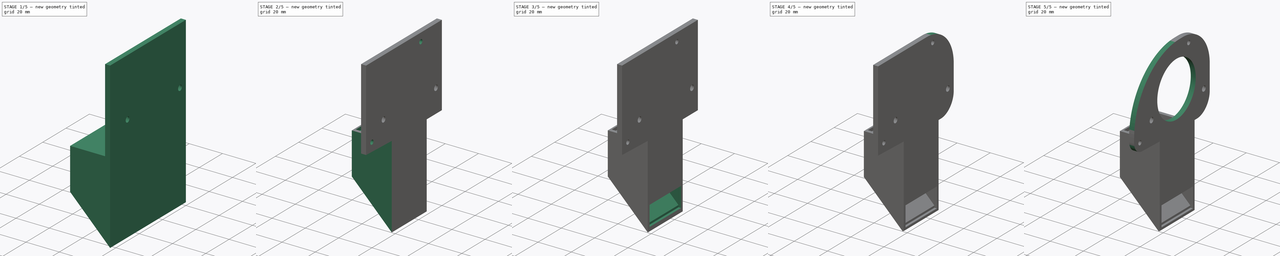
[diagram: build sequence overview — one tinted view per stage of 5, left to right]
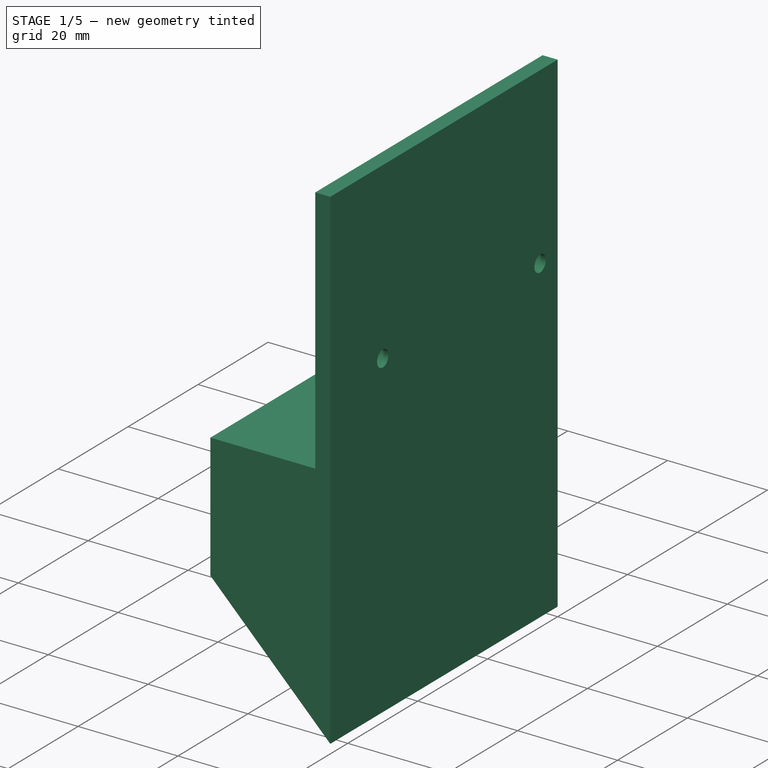
[diagram: stage 1 of 5 — iso view after this stage's code; geometry added in this stage tinted green]
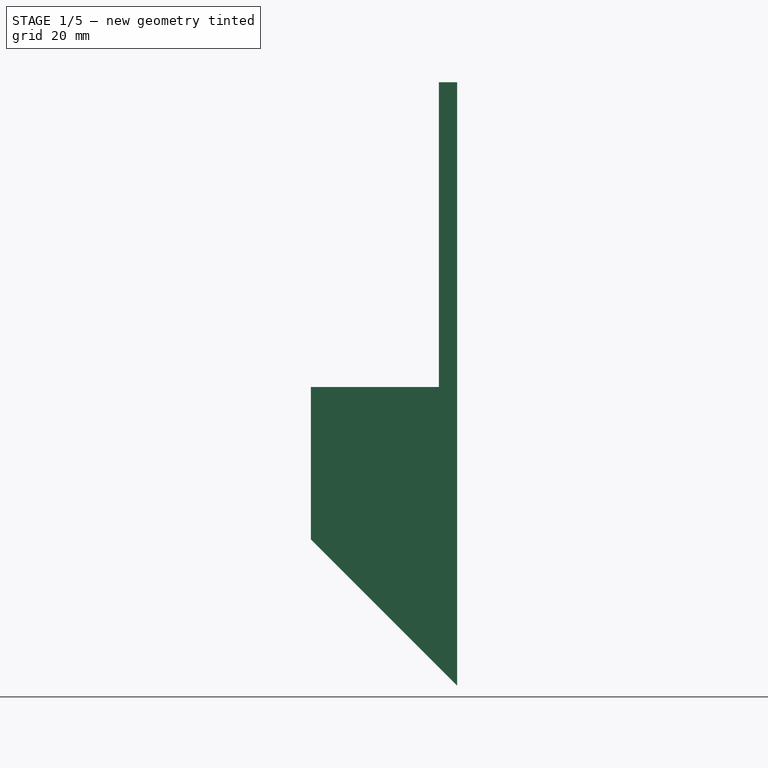
[diagram: stage 1 of 5 — front view after this stage's code; geometry added in this stage tinted green]
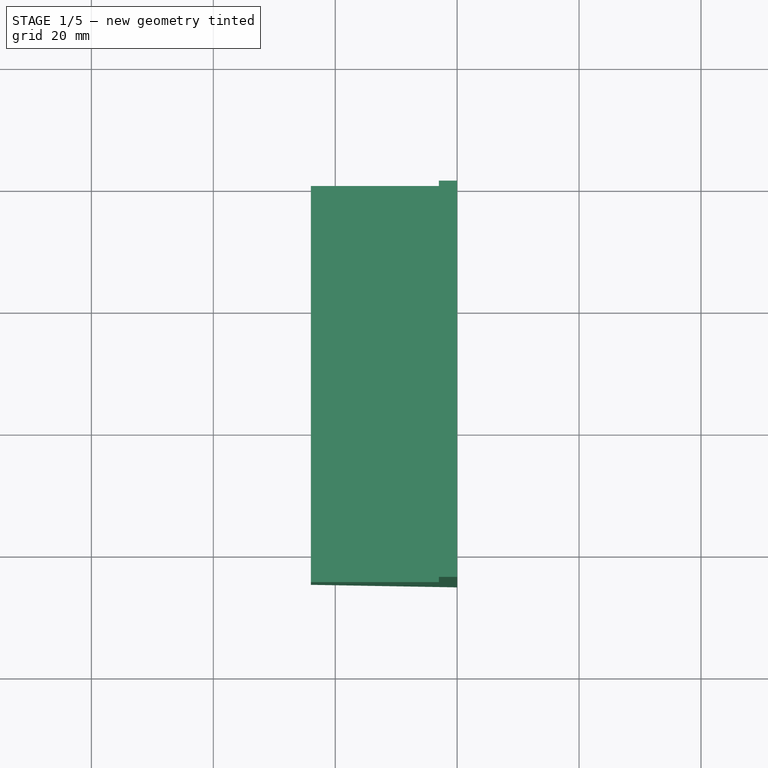
[diagram: stage 1 of 5 — top view after this stage's code; geometry added in this stage tinted green]
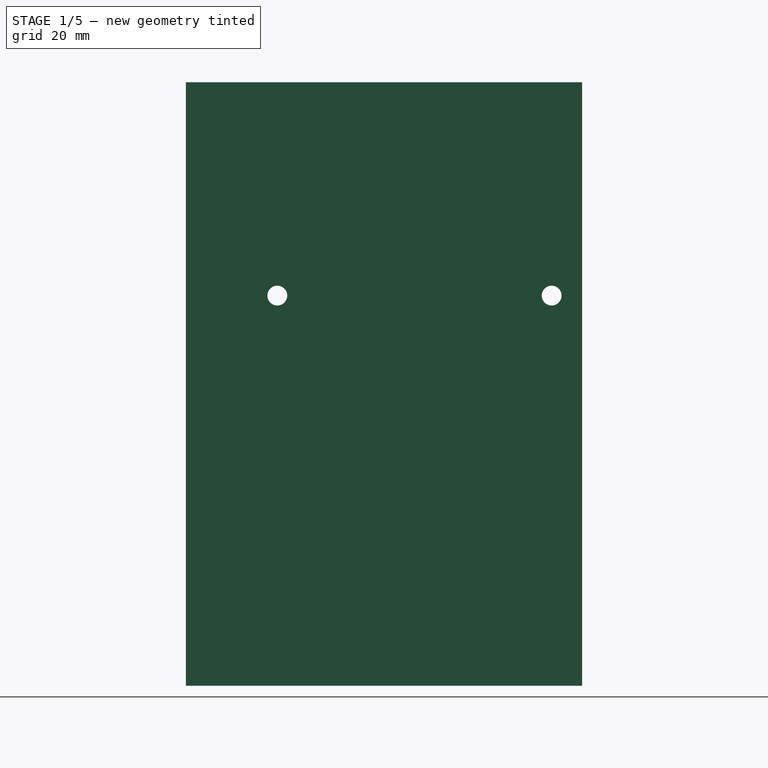
[diagram: stage 1 of 5 — right view after this stage's code; geometry added in this stage tinted green]
FCSTD DOCUMENT  (FreeCAD 0.19R)
Label: FanDuct9.2.2
License: All rights reserved
LicenseURL: http://en.wikipedia.org/wiki/All_rights_reserved
objects: Sketcher::SketchObject×14, PartDesign::Pocket×8, PartDesign::Fillet×4, PartDesign::Pad×2, PartDesign::Chamfer×1, PartDesign::Body×1
note: 45 computed .brp shape members not serialized (recipe doc carries the construction recipe); baked Part::Feature solids carry a one-line shape summary decoded from their .brp

FEATURE [Sketcher::SketchObject] Sketch035  label="startingpos"
  FullyConstrained = false
  MapMode = 5
  Placement = pos=(-14,0,0) rot=(0.57735,-0.57735,-0.57735;2.0944rad)
  sketch-geometry (5):
    g0: Circle CenterX=35 CenterY=-20 CenterZ=0 NormalX=0 NormalY=0 NormalZ=1 AngleXU=0 Radius=1
    g1: Circle CenterX=12 CenterY=44 CenterZ=0 NormalX=0 NormalY=0 NormalZ=1 AngleXU=0 Radius=1.9
    g2: Circle CenterX=55 CenterY=44 CenterZ=0 NormalX=0 NormalY=0 NormalZ=1 AngleXU=0 Radius=1.9
    g3: LineSegment StartX=12.5 StartY=38 StartZ=0 EndX=35 EndY=38 EndZ=0
    g4: GeomPoint X=35 Y=-19 Z=0
  constraints (13):
    c: DistanceY(g0) = -20
    c: Diameter(g1) = 3.8
    c: Equal(g1,g2)
    c: DistanceY(g1) = 44
    c: DistanceX(g2) = 55
    c: DistanceY(g2) = 44
    c: Diameter(g0) = 2
    c: Horizontal(g3)
    c: Distance(g3) = 22.5
    c: DistanceX(g0) = 35
    c: DistanceX(g3) = 35
    c: DistanceY(g3) = 38
    c: DistanceX(g4) = 35
FEATURE [Sketcher::SketchObject] Sketch037  label="startingpos001"
  FullyConstrained = false
  MapMode = 5
  Placement = pos=(-35,0,2.3e-15) rot=(-0.57735,0.57735,0.57735;4.18879rad)
  sketch-geometry (11):
    g0: Circle CenterX=35 CenterY=-20 CenterZ=0 NormalX=0 NormalY=0 NormalZ=1 AngleXU=0 Radius=1
    g1: Circle CenterX=12 CenterY=44 CenterZ=0 NormalX=0 NormalY=0 NormalZ=1 AngleXU=0 Radius=1.9
    g2: Circle CenterX=55 CenterY=44 CenterZ=0 NormalX=0 NormalY=0 NormalZ=1 AngleXU=0 Radius=1.9
    g3: LineSegment StartX=12.5 StartY=38 StartZ=0 EndX=35 EndY=38 EndZ=0
    g4: LineSegment StartX=5.72016 StartY=54.4932 StartZ=0 EndX=25.1498 EndY=-38.5121 EndZ=0
    g5: LineSegment StartX=25.1498 StartY=-38.5121 StartZ=0 EndX=-60.2156 EndY=-38.5121 EndZ=0
    g6: LineSegment StartX=-60.2156 StartY=-38.5121 StartZ=0 EndX=-35.1899 EndY=60.5708 EndZ=0
    g7: LineSegment StartX=-35.1899 StartY=60.5708 StartZ=0 EndX=99.6909 EndY=60.5708 EndZ=0
    g8: LineSegment StartX=56.1815 StartY=-38.9405 StartZ=0 EndX=37.0599 EndY=52.5904 EndZ=0
    g9: LineSegment StartX=56.1815 StartY=-38.9405 StartZ=0 EndX=99.6909 EndY=60.5708 EndZ=0
    g10: LineSegment StartX=5.72016 StartY=54.4932 StartZ=0 EndX=37.0599 EndY=52.5904 EndZ=0
  constraints (27):
    c: DistanceY(g0) = -20
    c: Diameter(g1) = 3.8
    c: Equal(g1,g2)
    c: DistanceX(g1) = 12
    c: DistanceY(g1) = 44
    c: DistanceX(g2) = 55
    c: DistanceY(g2) = 44
    c: Diameter(g0) = 2
    c: Horizontal(g3)
    c: Distance(g3) = 22.5
    c: DistanceX(g0) = 35
    c: DistanceX(g3) = 35
    c: DistanceY(g3) = 38
    c: Horizontal(g5)
    c: Coincident(g5,g6)
    c: Coincident(g6,g7)
    c: Horizontal(g7)
    c: Distance(g3,g8) = 5
    c: Coincident(g5,g4)
    c: Coincident(g8,g9)
    c: Coincident(g9,g7)
    c: DistanceX(g7) = 99.6909
    c: DistanceY(g7) = 60.5708
    c: DistanceX(g6) = -35.1899
    c: Parallel(g8,g4)
    c: Coincident(g10,g4)
    c: Coincident(g10,g8)
FEATURE [Sketcher::SketchObject] Sketch
  FullyConstrained = true
  MapMode = 5
  Placement = pos=(0,0,0) rot=(1,0,0;1.5708rad)
  Support = -> [XZ_Plane]
  sketch-geometry (8):
    g0: LineSegment StartX=0 StartY=-64 StartZ=0 EndX=0 EndY=35 EndZ=0
    g1: LineSegment StartX=0 StartY=35 StartZ=0 EndX=-3 EndY=35 EndZ=0
    g2: LineSegment StartX=-3 StartY=35 StartZ=0 EndX=-3 EndY=-15 EndZ=0
    g3: LineSegment StartX=-3 StartY=-15 StartZ=0 EndX=-24 EndY=-15 EndZ=0
    g4: LineSegment StartX=-24 StartY=-15 StartZ=0 EndX=-24 EndY=-40 EndZ=0
    g5: GeomPoint X=15 Y=-65 Z=0
    g6: LineSegment StartX=0 StartY=-64 StartZ=0 EndX=12.9155 EndY=-74.8374 EndZ=0
    g7: LineSegment StartX=-24 StartY=-40 StartZ=0 EndX=0 EndY=-64 EndZ=0
  constraints (23):
    c: PointOnObject(g0,g-2)
    c: PointOnObject(g0,g-2)
    c: Coincident(g0,g1)
    c: Coincident(g1,g2)
    c: Vertical(g2)
    c: Coincident(g2,g3)
    c: Horizontal(g3)
    c: Coincident(g3,g4)
    c: Vertical(g4)
    c: Horizontal(g1)
    c: Distance(g1) = 3
    c: DistanceX(g5) = 15
    c: DistanceY(g5) = -65
    c: Distance(g3) = 21
    c: Distance(g4) = 25
    c: Coincident(g6,g0)
    c: Angle(g6) = -0.698132
    c: DistanceY(g2) = -15
    c: DistanceY(g0) = -64
    c: Coincident(g7,g4)
    c: Coincident(g7,g0)
    c: Distance(g2) = 50
    c: Distance(g6) = 16.86
FEATURE [PartDesign::Pad] Pad
  Direction = (1,1,1)
  Length = 65
  Length2 = 100
  Placement = pos=(0,0,0) rot=(1,0,0;1.5708rad)
  Profile = -> Sketch
  Type = 0
FEATURE [Sketcher::SketchObject] Sketch052
  FullyConstrained = true
  MapMode = 5
  Placement = pos=(-3,0,0) rot=(0.707107,0,-0.707107;3.14159rad)
  Support = -> [Pad]
  sketch-geometry (2):
    g0: Circle CenterX=0 CenterY=5 CenterZ=0 NormalX=0 NormalY=0 NormalZ=1 AngleXU=0 Radius=1.625
    g1: Circle CenterX=0 CenterY=50 CenterZ=0 NormalX=0 NormalY=0 NormalZ=1 AngleXU=0 Radius=1.625
  constraints (6):
    c: Distance(g0,g1) = 45
    c: Diameter(g1) = 3.25
    c: Equal(g1,g0)
    c: PointOnObject(g0,g-2)
    c: PointOnObject(g1,g-2)
    c: DistanceY(g0) = 5
FEATURE [PartDesign::Pocket] Pocket
  BaseFeature = -> Pad
  Length = 5
  Length2 = 100
  Placement = pos=(0,0,0) rot=(1,0,0;1.5708rad)
  Profile = -> Sketch052
  Type = 0
FEATURE [Sketcher::SketchObject] Sketch053  label="headholecs"
  ExternalGeometry = -> [Pocket]
  FullyConstrained = true
  MapMode = 5
  Placement = pos=(-3,0,0) rot=(0.707107,0,-0.707107;3.14159rad)
  Support = -> [Pocket]
  sketch-geometry (2):
    g0: Circle CenterX=0 CenterY=50 CenterZ=0 NormalX=0 NormalY=0 NormalZ=1 AngleXU=0 Radius=2.875
    g1: Circle CenterX=0 CenterY=5 CenterZ=0 NormalX=0 NormalY=0 NormalZ=1 AngleXU=0 Radius=2.875
  constraints (4):
    c: Diameter(g0) = 5.75
    c: Equal(g0,g1)
    c: Coincident(g1,g-4)
    c: Coincident(g0,g-3)
FEATURE [PartDesign::Pocket] Pocket001
  BaseFeature = -> Pocket
  Length = 2
  Length2 = 100
  Placement = pos=(0,0,0) rot=(1,0,0;1.5708rad)
  Profile = -> Sketch053
  Type = 0
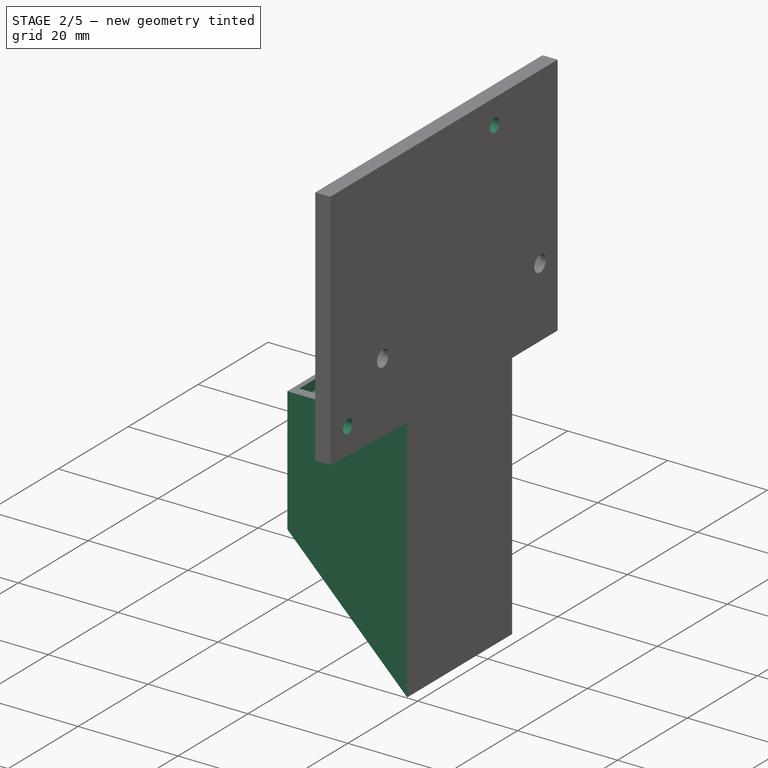
[diagram: stage 2 of 5 — iso view after this stage's code; geometry added in this stage tinted green]
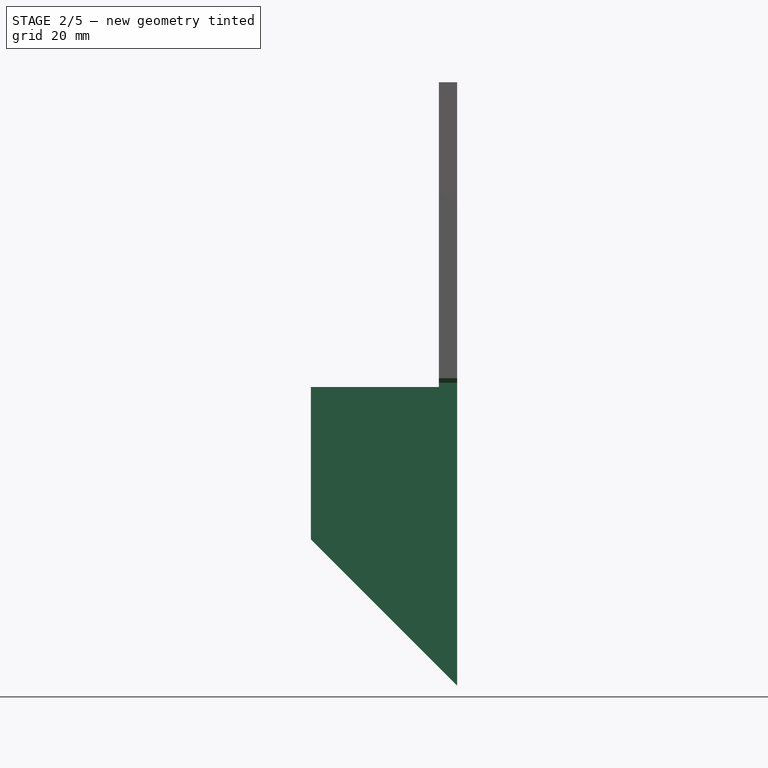
[diagram: stage 2 of 5 — front view after this stage's code; geometry added in this stage tinted green]
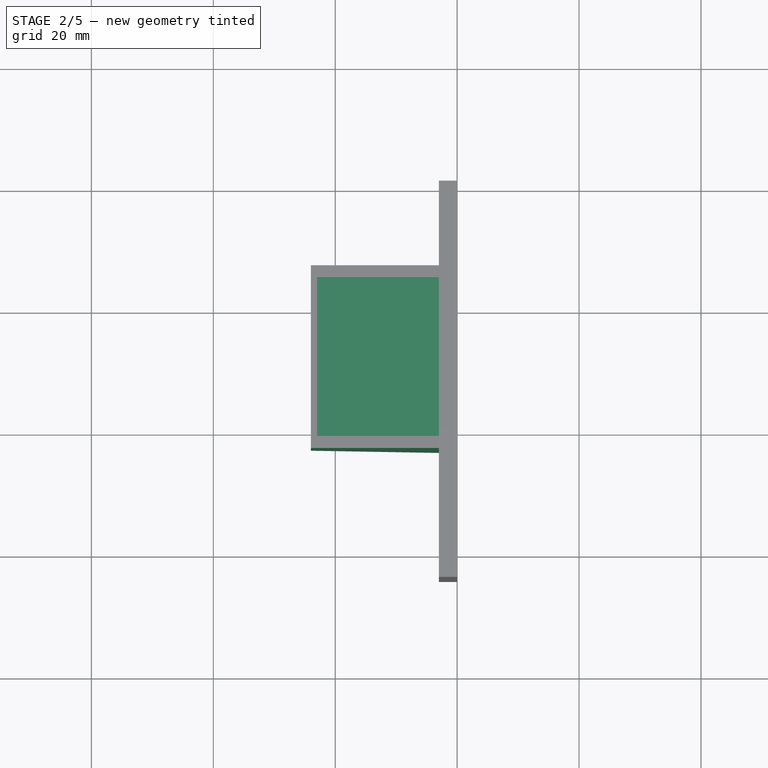
[diagram: stage 2 of 5 — top view after this stage's code; geometry added in this stage tinted green]
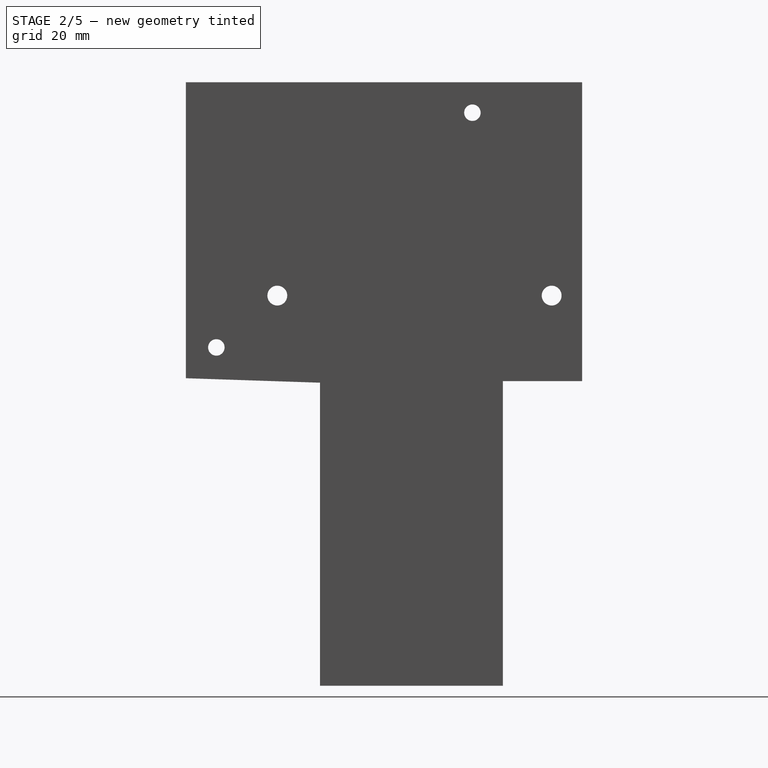
[diagram: stage 2 of 5 — right view after this stage's code; geometry added in this stage tinted green]
FEATURE [Sketcher::SketchObject] Sketch054  label="fanholes"
  ExternalGeometry = -> [Pocket001]
  FullyConstrained = true
  MapMode = 5
  Placement = pos=(-3,0,0) rot=(0.707107,0,-0.707107;3.14159rad)
  Support = -> [Pocket001]
  sketch-geometry (2):
    g0: Circle CenterX=8.5 CenterY=60 CenterZ=0 NormalX=0 NormalY=0 NormalZ=1 AngleXU=0 Radius=1.35
    g1: Circle CenterX=-30 CenterY=18 CenterZ=0 NormalX=0 NormalY=0 NormalZ=1 AngleXU=0 Radius=1.35
  constraints (6):
    c: DistanceX(g0) = 8.5
    c: Diameter(g0) = 2.7
    c: DistanceX(g1) = -30
    c: DistanceY(g1) = 18
    c: Diameter(g1) = 2.7
    c: DistanceY(g1,g0) = 42
FEATURE [PartDesign::Pocket] Pocket002
  BaseFeature = -> Pocket001
  Length = 5
  Length2 = 100
  Placement = pos=(0,0,0) rot=(1,0,0;1.5708rad)
  Profile = -> Sketch054
  Type = 0
FEATURE [Sketcher::SketchObject] Sketch055
  FullyConstrained = true
  MapMode = 5
  Placement = pos=(0,3.3e-15,-15) rot=(0,0,1;3.14159rad)
  Support = -> [Pocket002]
  sketch-geometry (4):
    g0: LineSegment StartX=3 StartY=41 StartZ=0 EndX=23 EndY=41 EndZ=0
    g1: LineSegment StartX=23 StartY=41 StartZ=0 EndX=23 EndY=15 EndZ=0
    g2: LineSegment StartX=23 StartY=15 StartZ=0 EndX=3 EndY=15 EndZ=0
    g3: LineSegment StartX=3 StartY=15 StartZ=0 EndX=3 EndY=41 EndZ=0
  constraints (12):
    c: Coincident(g0,g1)
    c: Coincident(g1,g2)
    c: Coincident(g2,g3)
    c: Coincident(g3,g0)
    c: Horizontal(g0)
    c: Horizontal(g2)
    c: Vertical(g1)
    c: Vertical(g3)
    c: DistanceY(g1) = 15
    c: Distance(g1) = 26
    c: Distance(g0) = 20
    c: DistanceX(g0) = 3
FEATURE [PartDesign::Pocket] Pocket003
  BaseFeature = -> Pocket002
  Length = 2
  Length2 = 100
  Placement = pos=(0,0,0) rot=(1,0,0;1.5708rad)
  Profile = -> Sketch055
  Type = 0
FEATURE [Sketcher::SketchObject] Sketch056
  ExternalGeometry = -> [Pocket003]
  FullyConstrained = false
  MapMode = 5
  Placement = pos=(-24,0,0) rot=(0.707107,0,-0.707107;3.14159rad)
  Support = -> [Pocket003]
  sketch-geometry (10):
    g0: GeomPoint X=65 Y=28 Z=0
    g1: LineSegment StartX=14.2864 StartY=43 StartZ=0 EndX=65 EndY=43 EndZ=0
    g2: LineSegment StartX=14.0286 StartY=13 StartZ=0 EndX=65 EndY=13 EndZ=0
    g3: LineSegment StartX=-42.9536 StartY=28 StartZ=0 EndX=92.236 EndY=28 EndZ=0
    g4: LineSegment StartX=140.957 StartY=77.3071 StartZ=0 EndX=140.957 EndY=-3.20519 EndZ=0
    g5: LineSegment StartX=65 StartY=43 StartZ=0 EndX=65 EndY=13 EndZ=0
    g6: LineSegment StartX=14.2864 StartY=43 StartZ=0 EndX=13.1396 EndY=77.3071 EndZ=0
    g7: LineSegment StartX=13.1396 StartY=77.3071 StartZ=0 EndX=140.957 EndY=77.3071 EndZ=0
    g8: LineSegment StartX=14.0286 StartY=13 StartZ=0 EndX=14.0286 EndY=-3.20519 EndZ=0
    g9: LineSegment StartX=14.0286 StartY=-3.20519 StartZ=0 EndX=140.957 EndY=-3.20519 EndZ=0
  constraints (20):
    c: DistanceY(g-3,g0) = 23
    c: DistanceX(g0) = 65
    c: DistanceY(g3) = 28
    c: Vertical(g4)
    c: Coincident(g5,g1)
    c: Coincident(g5,g2)
    c: Vertical(g5)
    c: Distance(g5) = 30
    c: Coincident(g6,g1)
    c: Coincident(g7,g6)
    c: Coincident(g7,g4)
    c: Horizontal(g7)
    c: Horizontal(g2)
    c: Coincident(g2,g8)
    c: Vertical(g8)
    c: Coincident(g8,g9)
    c: Horizontal(g9)
    c: Coincident(g4,g9)
    c: Horizontal(g1)
    c: Symmetric(g2,g1,g3)
FEATURE [Sketcher::SketchObject] Sketch059
  FullyConstrained = false
  MapMode = 5
  Placement = pos=(1.8e-15,15.9784,-8.14388) rot=(-1,0,0;2.04216rad)
  sketch-geometry (3):
    g0: LineSegment StartX=-0.967459 StartY=35.0174 StartZ=0 EndX=-0.967459 EndY=60.1814 EndZ=0
    g1: LineSegment StartX=-0.967459 StartY=60.1814 StartZ=0 EndX=-23.3456 EndY=35.0174 EndZ=0
    g2: LineSegment StartX=-23.3456 StartY=35.0174 StartZ=0 EndX=-0.967459 EndY=35.0174 EndZ=0
  constraints (5):
    c: Vertical(g0)
    c: Coincident(g0,g1)
    c: Coincident(g1,g2)
    c: Coincident(g2,g0)
    c: Horizontal(g2)
FEATURE [Sketcher::SketchObject] Sketch060
  FullyConstrained = false
  MapMode = 5
  Placement = pos=(0,0,0) rot=(0.707107,0,0.707107;3.14159rad)
  sketch-geometry (4):
    g0: LineSegment StartX=-60.8977 StartY=42.7501 StartZ=0 EndX=-52.8977 EndY=44.8833 EndZ=0
    g1: LineSegment StartX=-52.8977 StartY=44.8833 StartZ=0 EndX=-52.8977 EndY=11.516 EndZ=0
    g2: LineSegment StartX=-52.8977 StartY=11.516 StartZ=0 EndX=-60.8977 EndY=12.7501 EndZ=0
    g3: LineSegment StartX=-60.8977 StartY=12.7501 StartZ=0 EndX=-60.8977 EndY=42.7501 EndZ=0
  constraints (8):
    c: Coincident(g0,g1)
    c: Vertical(g1)
    c: Coincident(g1,g2)
    c: Coincident(g2,g3)
    c: Coincident(g3,g0)
    c: Vertical(g3)
    c: Distance(g0,g1) = 8
    c: Distance(g3) = 30
FEATURE [PartDesign::Pocket] Pocket004
  BaseFeature = -> Pocket003
  Length = 28
  Length2 = 100
  Placement = pos=(0,0,0) rot=(1,0,0;1.5708rad)
  Profile = -> Sketch056
  Type = 0
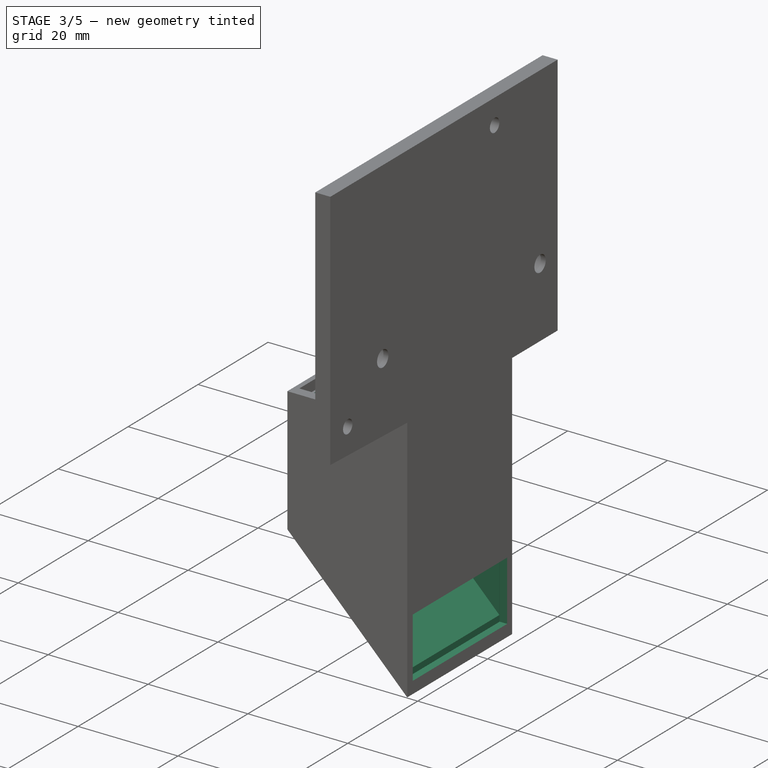
[diagram: stage 3 of 5 — iso view after this stage's code; geometry added in this stage tinted green]
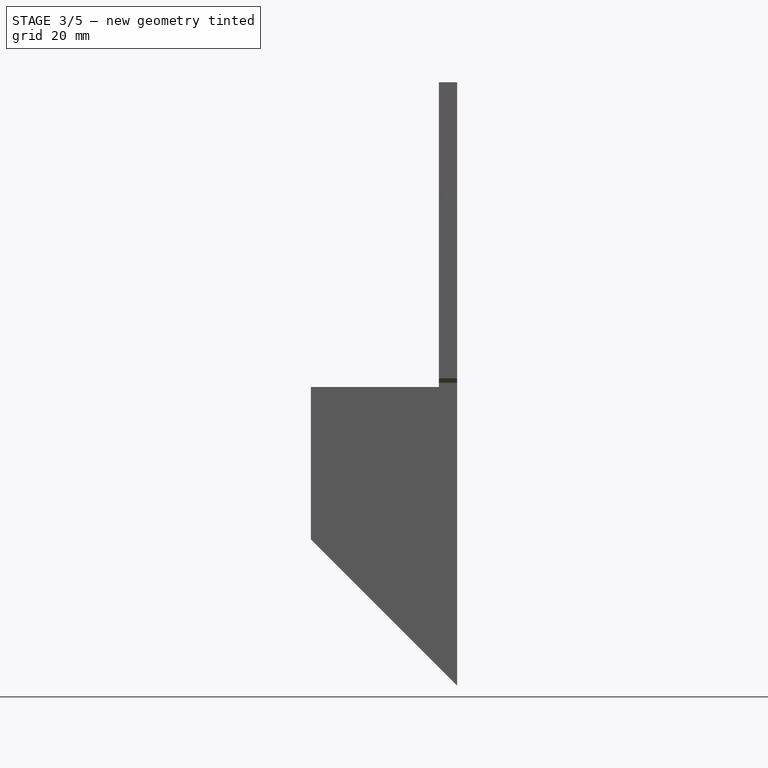
[diagram: stage 3 of 5 — front view after this stage's code; geometry added in this stage tinted green]
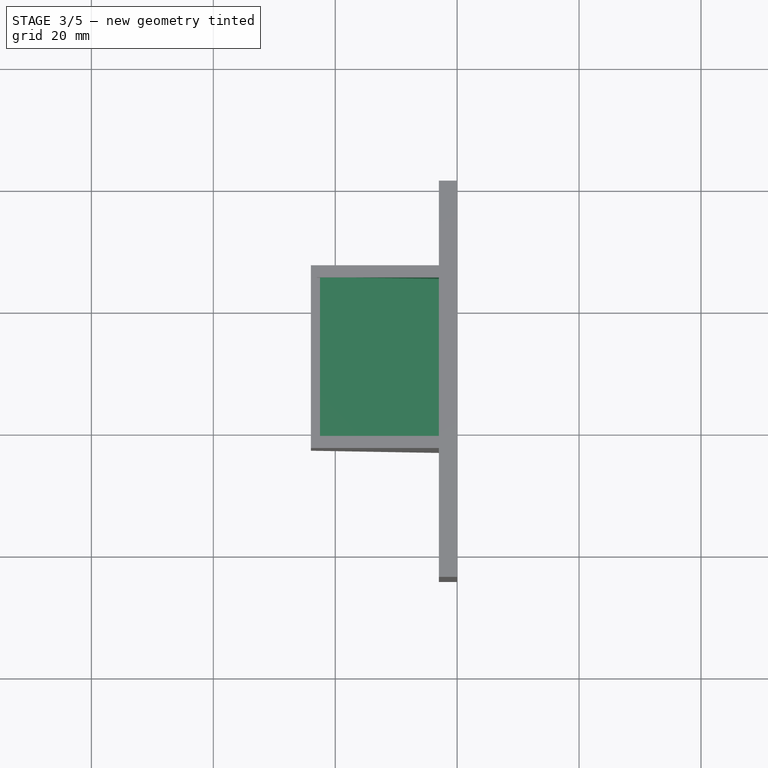
[diagram: stage 3 of 5 — top view after this stage's code; geometry added in this stage tinted green]
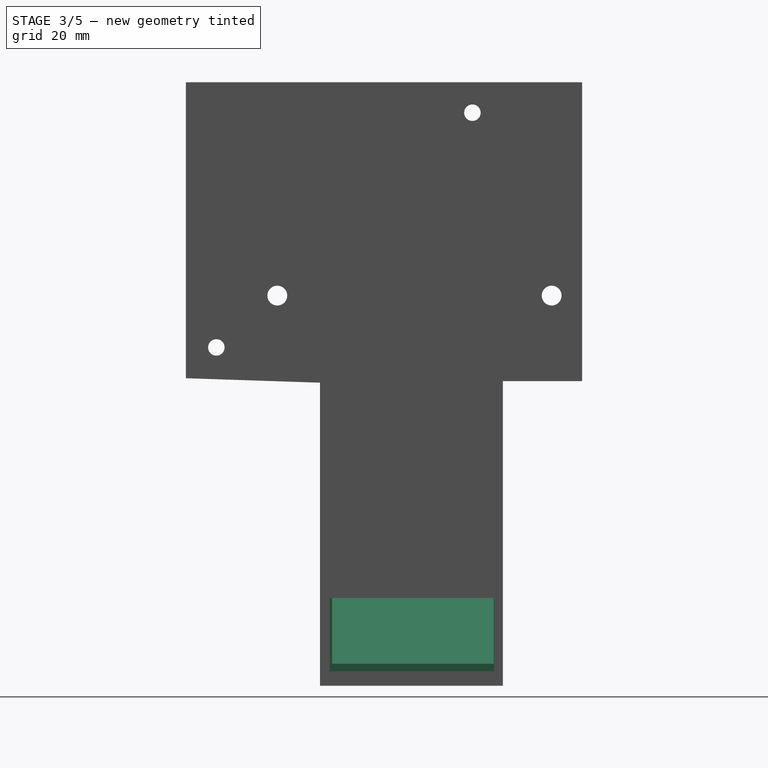
[diagram: stage 3 of 5 — right view after this stage's code; geometry added in this stage tinted green]
FEATURE [Sketcher::SketchObject] Sketch057
  FullyConstrained = false
  MapMode = 5
  Placement = pos=(0,-13,-2.9e-15) rot=(-1,0,0;1.5708rad)
  Support = -> [Pocket004]
  sketch-geometry (4):
    g0: LineSegment StartX=-22.5 StartY=16.5 StartZ=0 EndX=-1.5 EndY=16.5 EndZ=0
    g1: LineSegment StartX=-1.5 StartY=16.5 StartZ=0 EndX=-1.5 EndY=60.3787 EndZ=0
    g2: LineSegment StartX=-1.5 StartY=60.3787 StartZ=0 EndX=-22.5 EndY=39.3787 EndZ=0
    g3: LineSegment StartX=-22.5 StartY=39.3787 StartZ=0 EndX=-22.5 EndY=16.5 EndZ=0
  constraints (6):
    c: Horizontal(g0)
    c: Coincident(g0,g1)
    c: Coincident(g1,g2)
    c: Coincident(g2,g3)
    c: Coincident(g3,g0)
    c: Vertical(g3)
FEATURE [PartDesign::Pocket] Pocket005
  BaseFeature = -> Pocket004
  Length = 28
  Length2 = 100
  Placement = pos=(0,0,0) rot=(1,0,0;1.5708rad)
  Profile = -> Sketch057
  Type = 0
FEATURE [Sketcher::SketchObject] Sketch061
  FullyConstrained = false
  MapMode = 5
  Placement = pos=(0,-13,-2.9e-15) rot=(-1,0,0;1.5708rad)
  Support = -> [Pocket005]
  sketch-geometry (4):
    g0: LineSegment StartX=-1.0092 StartY=15.4599 StartZ=0 EndX=-23.0501 EndY=15.4599 EndZ=0
    g1: LineSegment StartX=-23.0501 StartY=15.4599 StartZ=0 EndX=-23.0501 EndY=39.6341 EndZ=0
    g2: LineSegment StartX=-23.0501 StartY=39.6341 StartZ=0 EndX=-1.0092 EndY=61.8316 EndZ=0
    g3: LineSegment StartX=-1.0092 StartY=61.8316 StartZ=0 EndX=-1.0092 EndY=15.4599 EndZ=0
  constraints (7):
    c: Horizontal(g0)
    c: Coincident(g0,g1)
    c: Vertical(g1)
    c: Coincident(g1,g2)
    c: Coincident(g2,g3)
    c: Coincident(g3,g0)
    c: Vertical(g3)
FEATURE [PartDesign::Pad] Pad001
  BaseFeature = -> Pocket005
  Direction = (1,1,1)
  Length = 1.5
  Length2 = 100
  Placement = pos=(0,0,0) rot=(1,0,0;1.5708rad)
  Profile = -> Sketch061
  Reversed = true
  Type = 0
FEATURE [Sketcher::SketchObject] Sketch062
  FullyConstrained = false
  MapMode = 5
  Placement = pos=(0,0,0) rot=(0.707107,0,0.707107;3.14159rad)
  Support = -> [Pad001]
  sketch-geometry (4):
    g0: LineSegment StartX=-61.6089 StartY=41.4165 StartZ=0 EndX=-49.6089 EndY=41.4165 EndZ=0
    g1: LineSegment StartX=-49.6089 StartY=41.4165 StartZ=0 EndX=-49.6089 EndY=14.4165 EndZ=0
    g2: LineSegment StartX=-49.6089 StartY=14.4165 StartZ=0 EndX=-61.6089 EndY=14.4165 EndZ=0
    g3: LineSegment StartX=-61.6089 StartY=14.4165 StartZ=0 EndX=-61.6089 EndY=41.4165 EndZ=0
  constraints (10):
    c: Coincident(g0,g1)
    c: Coincident(g1,g2)
    c: Coincident(g2,g3)
    c: Coincident(g3,g0)
    c: Horizontal(g0)
    c: Horizontal(g2)
    c: Vertical(g1)
    c: Vertical(g3)
    c: Distance(g0) = 12
    c: Distance(g3) = 27
FEATURE [PartDesign::Pocket] Pocket006
  BaseFeature = -> Pad001
  Length = 1.5
  Length2 = 100
  Placement = pos=(0,0,0) rot=(1,0,0;1.5708rad)
  Profile = -> Sketch062
  Type = 0
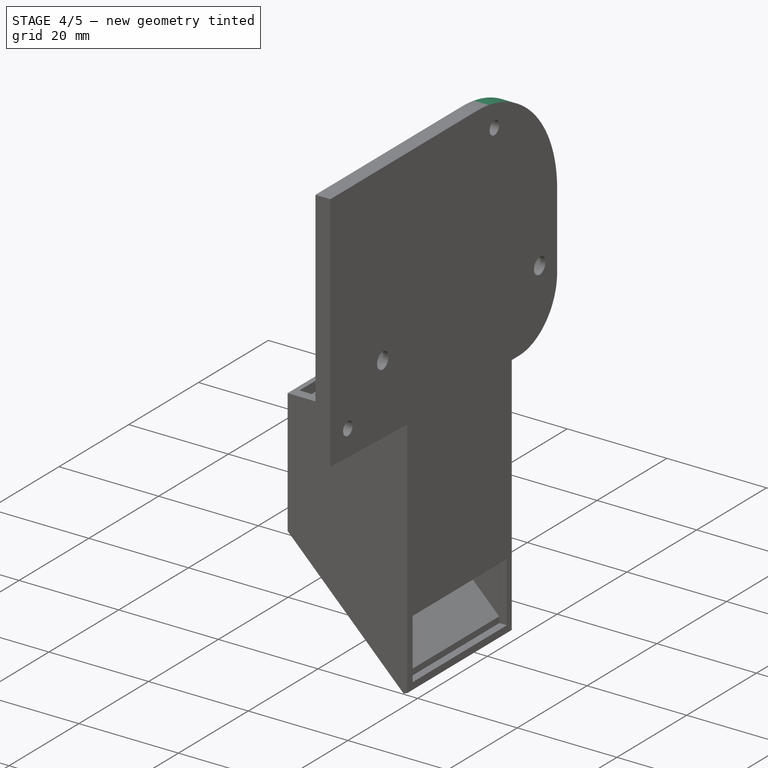
[diagram: stage 4 of 5 — iso view after this stage's code; geometry added in this stage tinted green]
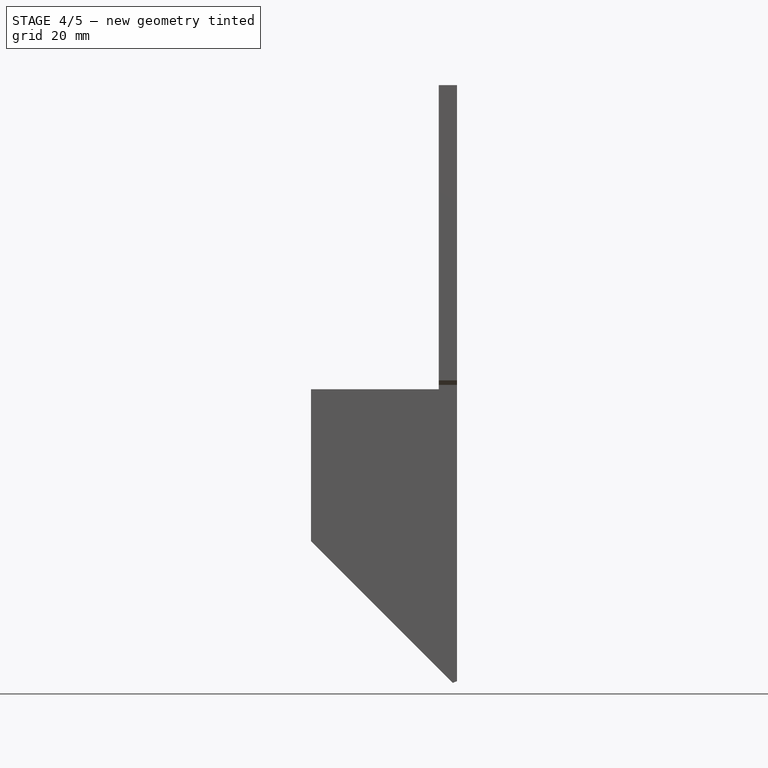
[diagram: stage 4 of 5 — front view after this stage's code; geometry added in this stage tinted green]
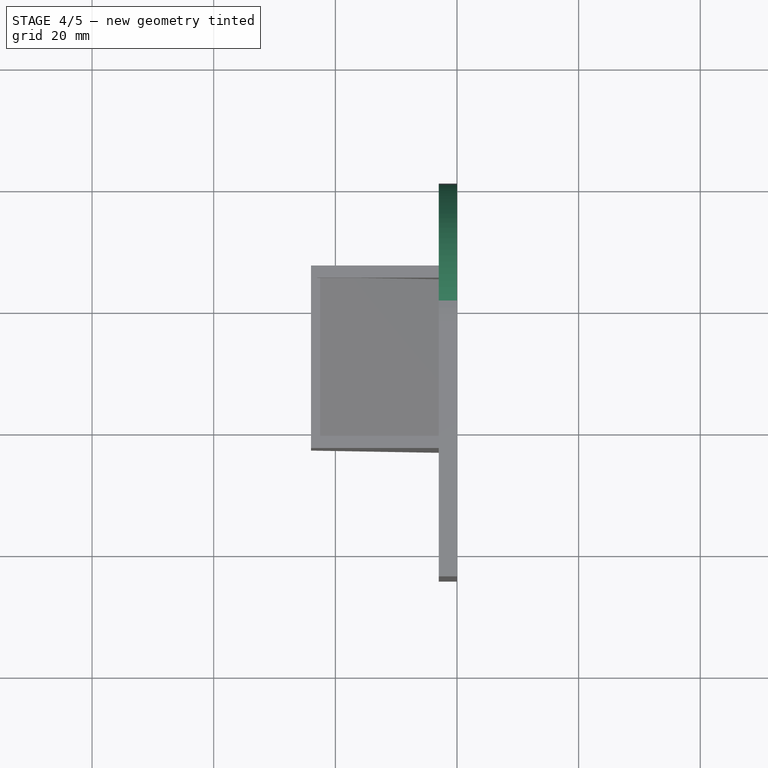
[diagram: stage 4 of 5 — top view after this stage's code; geometry added in this stage tinted green]
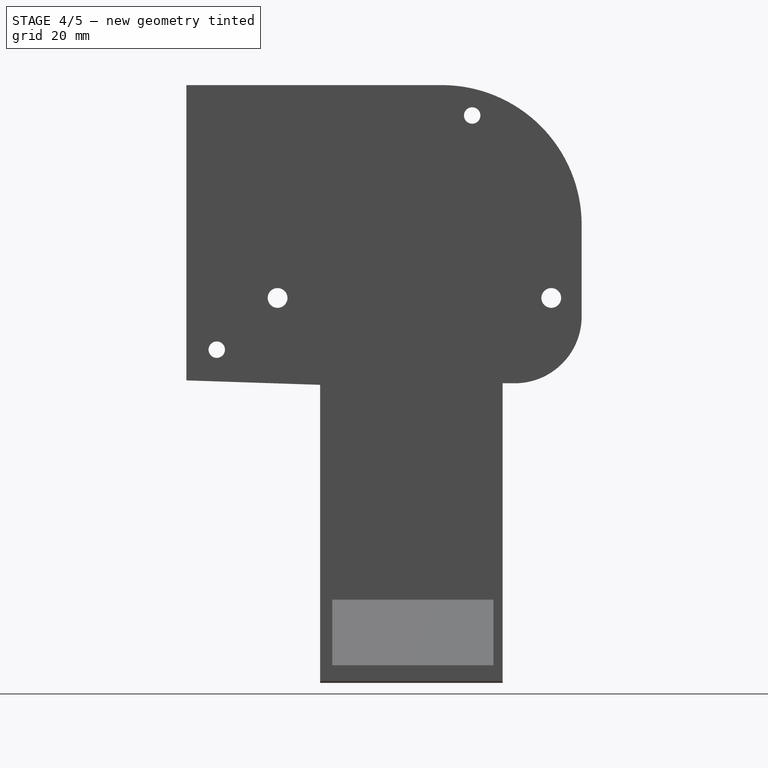
[diagram: stage 4 of 5 — right view after this stage's code; geometry added in this stage tinted green]
FEATURE [PartDesign::Chamfer] Chamfer
  Angle = 45
  Base = -> Pocket006 [Edge3]
  BaseFeature = -> Pocket006
  ChamferType = 0
  FlipDirection = false
  Placement = pos=(0,0,0) rot=(1,0,0;1.5708rad)
  Size = 1
  Size2 = 1
  SupportTransform = false
FEATURE [PartDesign::Fillet] Fillet
  Base = -> Chamfer [Edge30]
  BaseFeature = -> Chamfer
  Placement = pos=(0,0,0) rot=(1,0,0;1.5708rad)
  Radius = 11
  SupportTransform = false
FEATURE [PartDesign::Fillet] Fillet001
  Base = -> Fillet [Edge33]
  BaseFeature = -> Fillet
  Placement = pos=(0,0,0) rot=(1,0,0;1.5708rad)
  Radius = 23
  SupportTransform = false
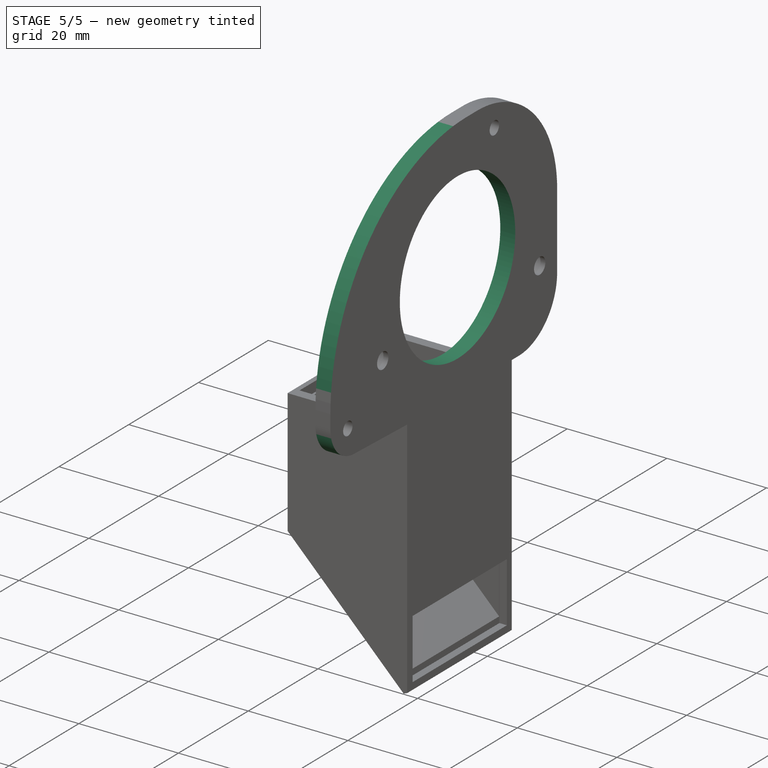
[diagram: stage 5 of 5 — iso view after this stage's code; geometry added in this stage tinted green]
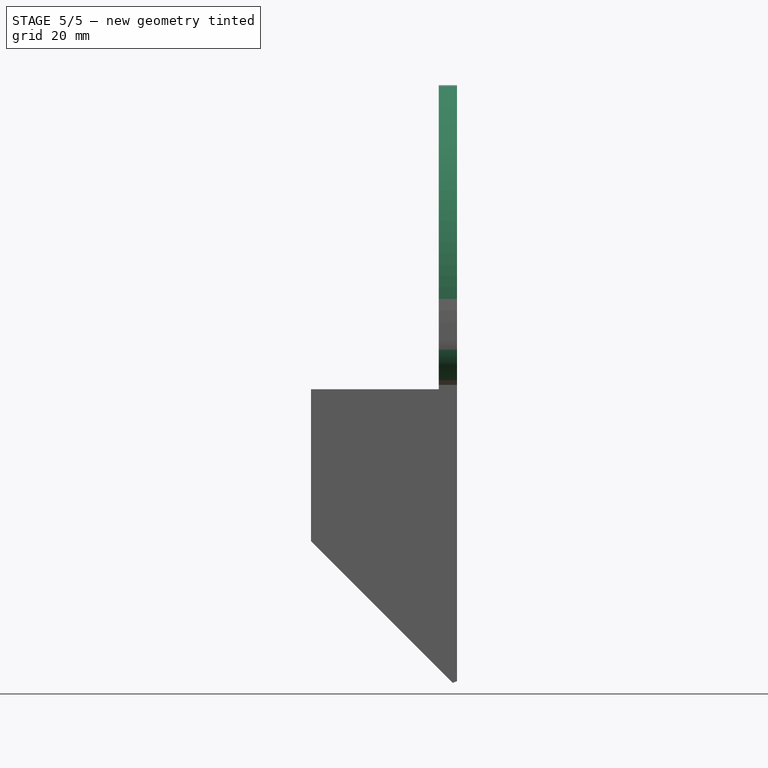
[diagram: stage 5 of 5 — front view after this stage's code; geometry added in this stage tinted green]
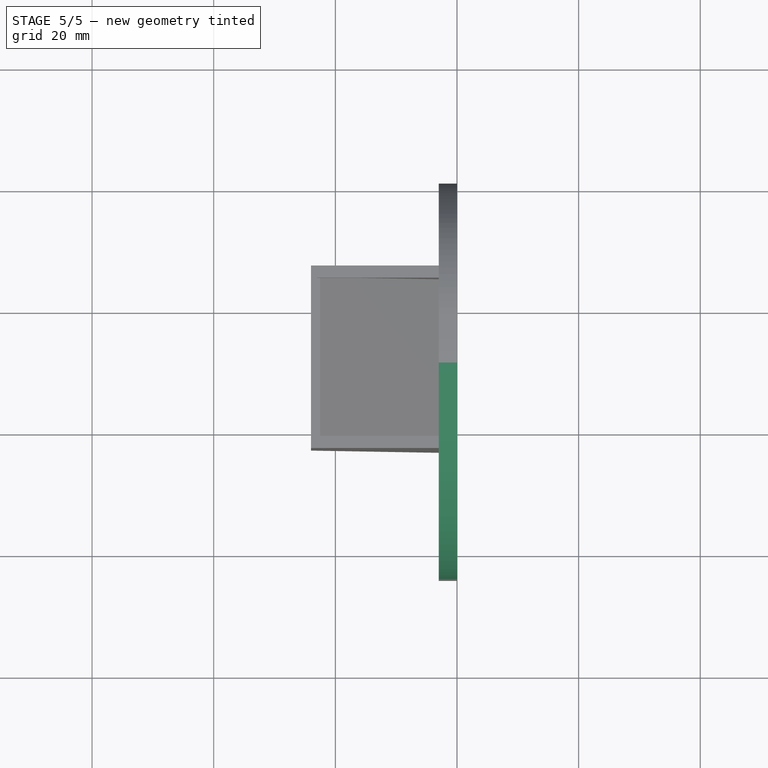
[diagram: stage 5 of 5 — top view after this stage's code; geometry added in this stage tinted green]
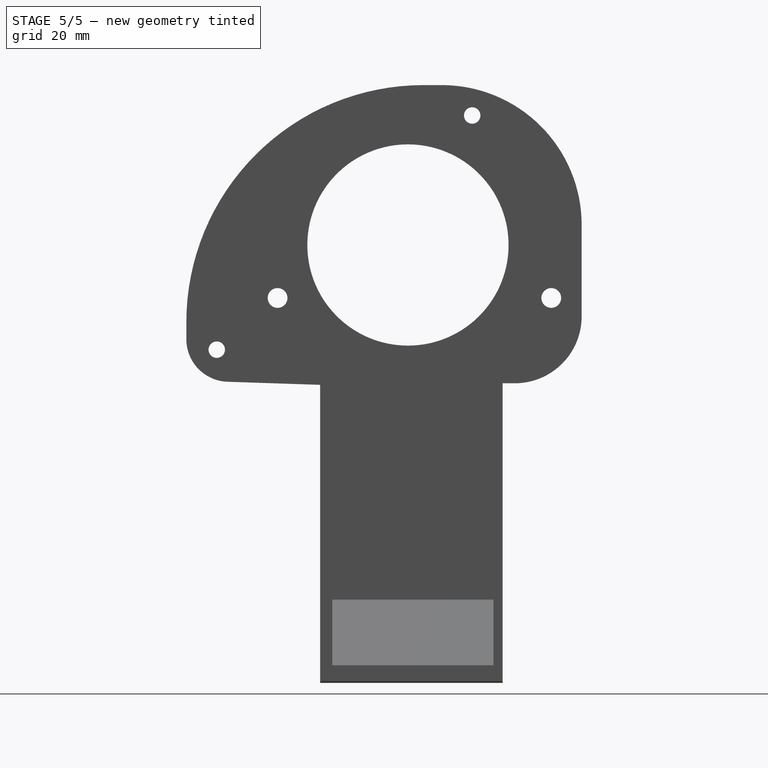
[diagram: stage 5 of 5 — right view after this stage's code; geometry added in this stage tinted green]
FEATURE [PartDesign::Fillet] Fillet002
  Base = -> Fillet001 [Edge26]
  BaseFeature = -> Fillet001
  Placement = pos=(0,0,0) rot=(1,0,0;1.5708rad)
  Radius = 39
  SupportTransform = false
FEATURE [PartDesign::Fillet] Fillet003
  Base = -> Fillet002 [Edge28]
  BaseFeature = -> Fillet002
  Placement = pos=(0,0,0) rot=(1,0,0;1.5708rad)
  Radius = 7
  SupportTransform = false
FEATURE [Sketcher::SketchObject] Sketch063
  FullyConstrained = false
  MapMode = 5
  Placement = pos=(-3,0,0) rot=(0.707107,0,-0.707107;3.14159rad)
  Support = -> [Fillet003]
  sketch-geometry (1):
    g0: Circle CenterX=-8.70836 CenterY=28.5626 CenterZ=0 NormalX=0 NormalY=0 NormalZ=1 AngleXU=0 Radius=16.5442
FEATURE [PartDesign::Pocket] Pocket007
  BaseFeature = -> Fillet003
  Length = 5
  Length2 = 100
  Placement = pos=(0,0,0) rot=(1,0,0;1.5708rad)
  Profile = -> Sketch063
  Type = 0
FEATURE [PartDesign::Body] Body
  Group = -> [Sketch035,Sketch037,Sketch,Pad,Sketch052,Pocket,Sketch053,Pocket001,Sketch054,Pocket002,Sketch055,Pocket003,Sketch056,Sketch057,Sketch059,Sketch060,Pocket004,Pocket005,Sketch061,Pad001,Sketch062,Pocket006,Chamfer,Fillet,Fillet001,Fillet002,Fillet003,Sketch063,Pocket007]
  Origin = -> Origin
  Tip = -> Pocket007
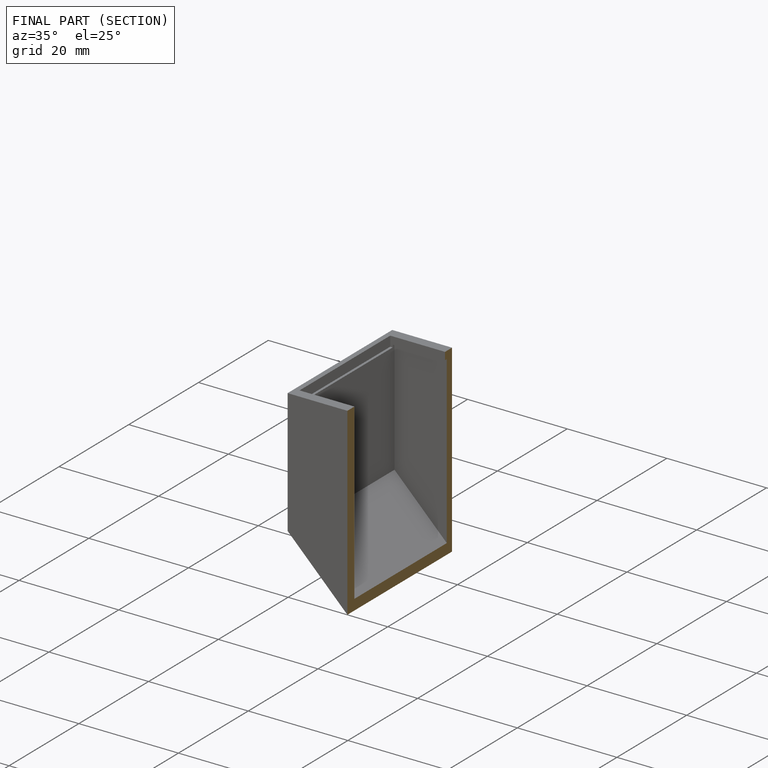
[diagram: finished part — half-section view (interior)]
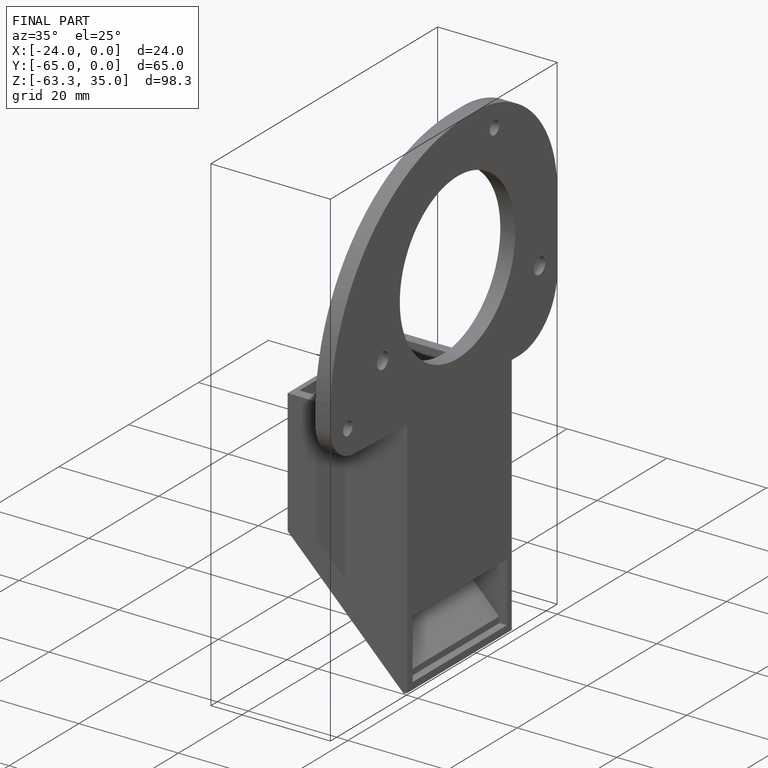
[diagram: finished part — iso view with bounding-box wireframe]
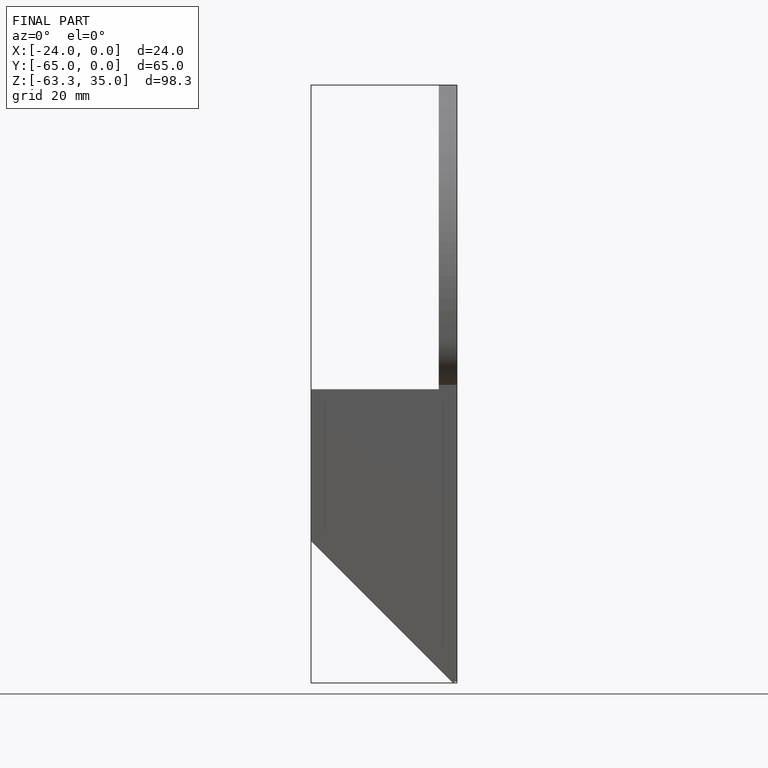
[diagram: finished part — front view with bounding-box wireframe]
